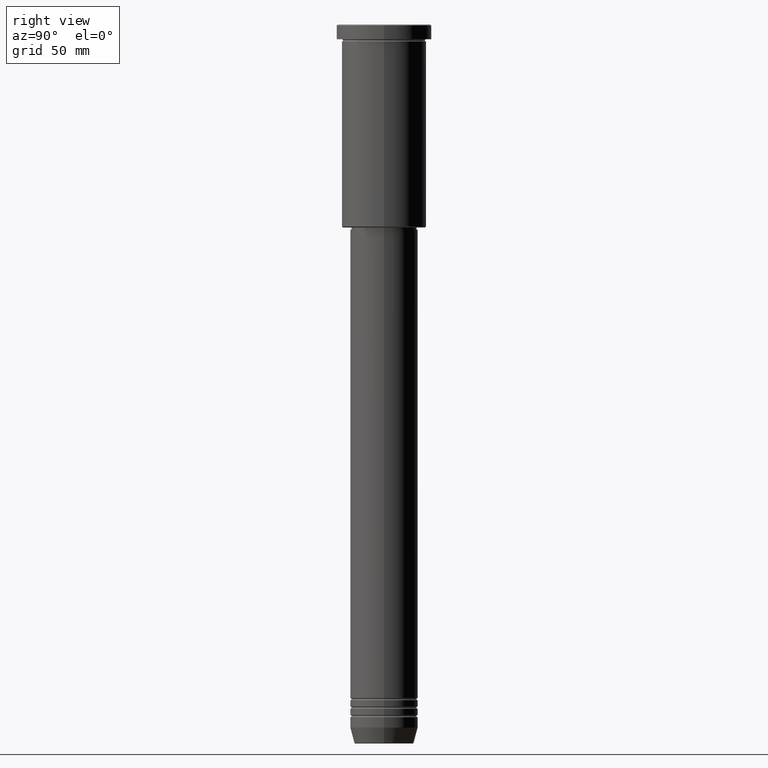
[diagram: clean part render]
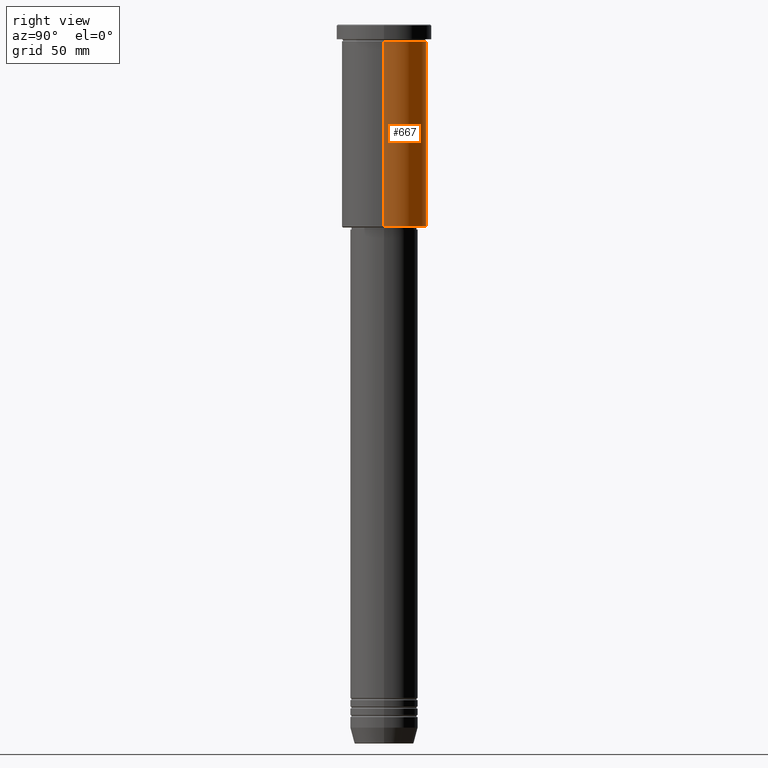
[diagram: same view with one face highlighted and labeled with its STEP entity id]
A machine part, right view. The second image highlights one B-rep face of the part: STEP entity #667.
In plain terms, the highlighted cylindrical surface (partial cylindrical patch) has radius 20 mm, axis along (-0, -0, 1).
Its self-contained STEP definition (entity closure, byte-faithful):
#26 = EDGE_CURVE ( 'NONE', #219, #593, #859, .T. ) ;
#44 = DIRECTION ( 'NONE',  ( 1.000000000000000000, 0.000000000000000000, 0.000000000000000000 ) ) ;
#61 = CARTESIAN_POINT ( 'NONE',  ( -20.00000000000000355, 2.449293598294706907E-15, 0.000000000000000000 ) ) ;
#62 = DIRECTION ( 'NONE',  ( -1.000000000000000000, 0.000000000000000000, 0.000000000000000000 ) ) ;
#123 = VERTEX_POINT ( 'NONE', #801 ) ;
#141 = DIRECTION ( 'NONE',  ( -0.000000000000000000, -0.000000000000000000, 1.000000000000000000 ) ) ;
#157 = CIRCLE ( 'NONE', #333, 20.00000000000000000 ) ;
#200 = ORIENTED_EDGE ( 'NONE', *, *, #710, .F. ) ;
#216 = LINE ( 'NONE', #852, #926 ) ;
#219 = VERTEX_POINT ( 'NONE', #784 ) ;
#333 = AXIS2_PLACEMENT_3D ( 'NONE', #367, #632, #543 ) ;
#343 = DIRECTION ( 'NONE',  ( -0.000000000000000000, -0.000000000000000000, 1.000000000000000000 ) ) ;
#349 = CIRCLE ( 'NONE', #1019, 20.00000000000000355 ) ;
#367 = CARTESIAN_POINT ( 'NONE',  ( 0.000000000000000000, 0.000000000000000000, -7.999999999999994671 ) ) ;
#410 = CARTESIAN_POINT ( 'NONE',  ( 20.00000000000000000, 0.000000000000000000, -7.999999999999994671 ) ) ;
#426 = CARTESIAN_POINT ( 'NONE',  ( 0.000000000000000000, 0.000000000000000000, -95.49999999999998579 ) ) ;
#441 = EDGE_CURVE ( 'NONE', #677, #593, #157, .T. ) ;
#463 = EDGE_LOOP ( 'NONE', ( #1128, #1145, #936, #200 ) ) ;
#472 = AXIS2_PLACEMENT_3D ( 'NONE', #586, #141, #44 ) ;
#484 = CYLINDRICAL_SURFACE ( 'NONE', #472, 20.00000000000000355 ) ;
#498 = EDGE_CURVE ( 'NONE', #123, #219, #349, .T. ) ;
#543 = DIRECTION ( 'NONE',  ( 1.000000000000000000, 0.000000000000000000, 0.000000000000000000 ) ) ;
#546 = VECTOR ( 'NONE', #641, 1000.000000000000000 ) ;
#586 = CARTESIAN_POINT ( 'NONE',  ( 0.000000000000000000, 0.000000000000000000, 0.000000000000000000 ) ) ;
#593 = VERTEX_POINT ( 'NONE', #1141 ) ;
#632 = DIRECTION ( 'NONE',  ( -0.000000000000000000, -0.000000000000000000, 1.000000000000000000 ) ) ;
#641 = DIRECTION ( 'NONE',  ( -0.000000000000000000, -0.000000000000000000, 1.000000000000000000 ) ) ;
#667 = ADVANCED_FACE ( 'NONE', ( #927 ), #484, .T. ) ;
#677 = VERTEX_POINT ( 'NONE', #410 ) ;
#710 = EDGE_CURVE ( 'NONE', #123, #677, #216, .T. ) ;
#784 = CARTESIAN_POINT ( 'NONE',  ( -20.00000000000000355, 2.449293598294706907E-15, -95.49999999999998579 ) ) ;
#801 = CARTESIAN_POINT ( 'NONE',  ( 20.00000000000000355, 0.000000000000000000, -95.49999999999998579 ) ) ;
#852 = CARTESIAN_POINT ( 'NONE',  ( 20.00000000000000355, 0.000000000000000000, 0.000000000000000000 ) ) ;
#859 = LINE ( 'NONE', #61, #546 ) ;
#926 = VECTOR ( 'NONE', #1126, 1000.000000000000000 ) ;
#927 = FACE_OUTER_BOUND ( 'NONE', #463, .T. ) ;
#936 = ORIENTED_EDGE ( 'NONE', *, *, #441, .F. ) ;
#1019 = AXIS2_PLACEMENT_3D ( 'NONE', #426, #343, #62 ) ;
#1126 = DIRECTION ( 'NONE',  ( -0.000000000000000000, -0.000000000000000000, 1.000000000000000000 ) ) ;
#1128 = ORIENTED_EDGE ( 'NONE', *, *, #498, .T. ) ;
#1141 = CARTESIAN_POINT ( 'NONE',  ( -20.00000000000000000, 2.449293598294706513E-15, -7.999999999999994671 ) ) ;
#1145 = ORIENTED_EDGE ( 'NONE', *, *, #26, .T. ) ;